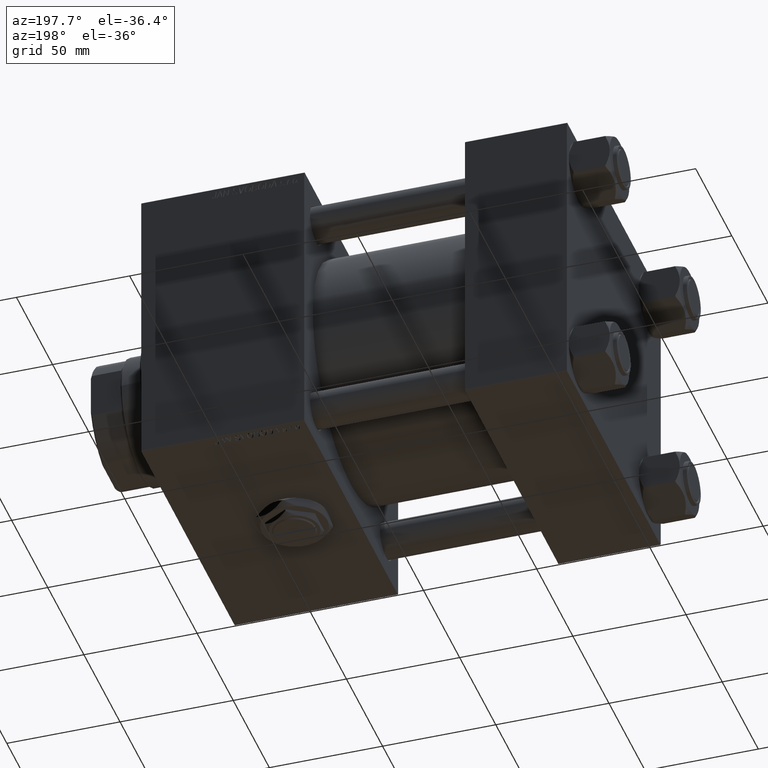
[diagram: clean part render]
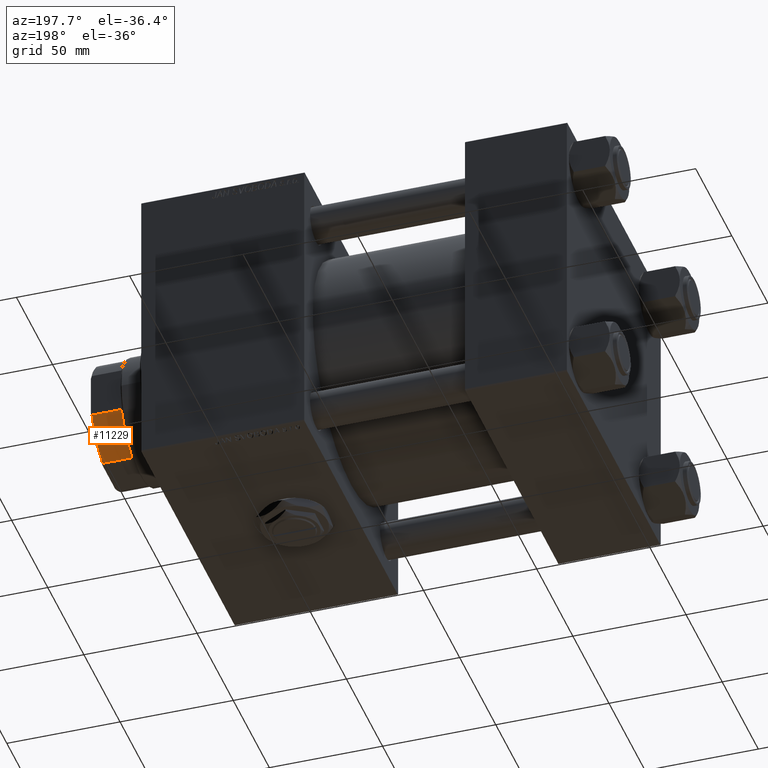
[diagram: same view with one face highlighted and labeled with its STEP entity id]
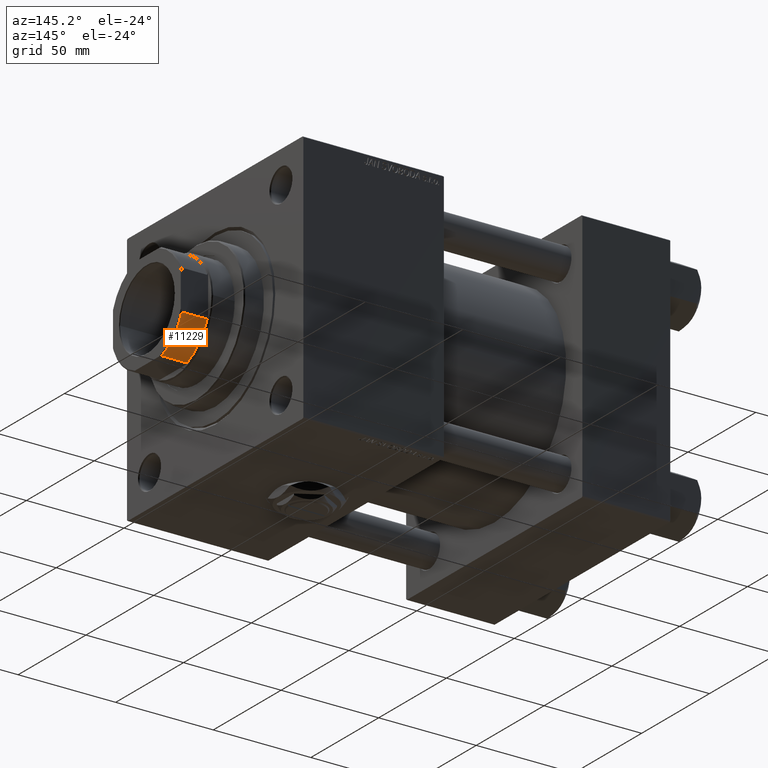
[diagram: same view with one face highlighted and labeled with its STEP entity id]
A machine part, auxiliary view. The second image highlights one B-rep face of the part: STEP entity #11229.
A second angle (auxiliary view) of the same face is appended — the face is thin or edge-on in the first view.
In plain terms, the highlighted cylindrical surface (partial cylindrical patch) has radius 27 mm, axis along (1, 0, 0).
Its self-contained STEP definition (entity closure, byte-faithful):
#1735 = ORIENTED_EDGE ( 'NONE', *, *, #46876, .T. ) ;
#1784 = VERTEX_POINT ( 'NONE', #38499 ) ;
#2198 = DIRECTION ( 'NONE',  ( -0.000000000000000000, -0.000000000000000000, 1.000000000000000000 ) ) ;
#2940 = AXIS2_PLACEMENT_3D ( 'NONE', #5974, #26670, #42578 ) ;
#5974 = CARTESIAN_POINT ( 'NONE',  ( 0.000000000000000000, 0.000000000000000000, 177.5000000000000000 ) ) ;
#6509 = AXIS2_PLACEMENT_3D ( 'NONE', #28573, #44738, #24620 ) ;
#9947 = CARTESIAN_POINT ( 'NONE',  ( 0.000000000000000000, 0.000000000000000000, -0.001000000000001000089 ) ) ;
#10724 = FACE_OUTER_BOUND ( 'NONE', #40566, .T. ) ;
#11229 = ADVANCED_FACE ( 'NONE', ( #10724 ), #34588, .T. ) ;
#12251 = CARTESIAN_POINT ( 'NONE',  ( -10.19803902718555655, 25.00000000000000000, -0.001000000000001000089 ) ) ;
#12557 = CARTESIAN_POINT ( 'NONE',  ( -10.19803902718555655, 25.00000000000000000, 177.5000000000000000 ) ) ;
#14643 = CARTESIAN_POINT ( 'NONE',  ( -25.00000000000000000, 10.19803902718555122, 164.5000000000000000 ) ) ;
#14769 = VERTEX_POINT ( 'NONE', #14643 ) ;
#15210 = ORIENTED_EDGE ( 'NONE', *, *, #33552, .F. ) ;
#15979 = DIRECTION ( 'NONE',  ( -0.000000000000000000, -0.000000000000000000, 1.000000000000000000 ) ) ;
#17002 = CARTESIAN_POINT ( 'NONE',  ( -10.19803902718555300, 25.00000000000000000, 164.5000000000000000 ) ) ;
#19107 = CIRCLE ( 'NONE', #2940, 26.99999999999999645 ) ;
#21580 = ORIENTED_EDGE ( 'NONE', *, *, #31050, .T. ) ;
#22395 = DIRECTION ( 'NONE',  ( 1.000000000000000000, 0.000000000000000000, 0.000000000000000000 ) ) ;
#22640 = CIRCLE ( 'NONE', #6509, 26.99999999999999645 ) ;
#23992 = ORIENTED_EDGE ( 'NONE', *, *, #25517, .T. ) ;
#24620 = DIRECTION ( 'NONE',  ( -1.000000000000000000, 2.664535259100375697E-15, 0.000000000000000000 ) ) ;
#25517 = EDGE_CURVE ( 'NONE', #1784, #43268, #19107, .T. ) ;
#26670 = DIRECTION ( 'NONE',  ( -0.000000000000000000, -0.000000000000000000, -1.000000000000000000 ) ) ;
#26887 = LINE ( 'NONE', #43314, #27757 ) ;
#26964 = VERTEX_POINT ( 'NONE', #17002 ) ;
#27639 = LINE ( 'NONE', #12251, #35471 ) ;
#27757 = VECTOR ( 'NONE', #2198, 1000.000000000000000 ) ;
#28573 = CARTESIAN_POINT ( 'NONE',  ( 0.000000000000000000, 0.000000000000000000, 164.5000000000000000 ) ) ;
#31050 = EDGE_CURVE ( 'NONE', #14769, #1784, #26887, .T. ) ;
#33552 = EDGE_CURVE ( 'NONE', #26964, #43268, #27639, .T. ) ;
#34076 = DIRECTION ( 'NONE',  ( -0.000000000000000000, -0.000000000000000000, 1.000000000000000000 ) ) ;
#34588 = CYLINDRICAL_SURFACE ( 'NONE', #50781, 26.99999999999999645 ) ;
#35471 = VECTOR ( 'NONE', #15979, 1000.000000000000000 ) ;
#38499 = CARTESIAN_POINT ( 'NONE',  ( -25.00000000000000000, 10.19803902718555655, 177.5000000000000000 ) ) ;
#40566 = EDGE_LOOP ( 'NONE', ( #21580, #23992, #15210, #1735 ) ) ;
#42578 = DIRECTION ( 'NONE',  ( 1.000000000000000000, 0.000000000000000000, 0.000000000000000000 ) ) ;
#43268 = VERTEX_POINT ( 'NONE', #12557 ) ;
#43314 = CARTESIAN_POINT ( 'NONE',  ( -25.00000000000000000, 10.19803902718555655, -0.001000000000001000089 ) ) ;
#44738 = DIRECTION ( 'NONE',  ( -0.000000000000000000, -0.000000000000000000, 1.000000000000000000 ) ) ;
#46876 = EDGE_CURVE ( 'NONE', #26964, #14769, #22640, .T. ) ;
#50781 = AXIS2_PLACEMENT_3D ( 'NONE', #9947, #34076, #22395 ) ;